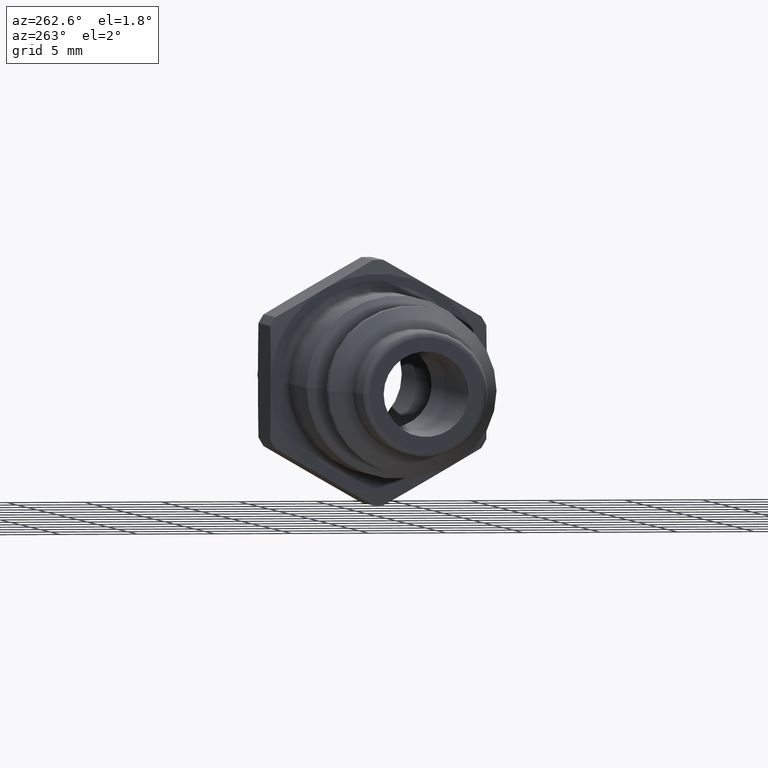
[diagram: clean part render]
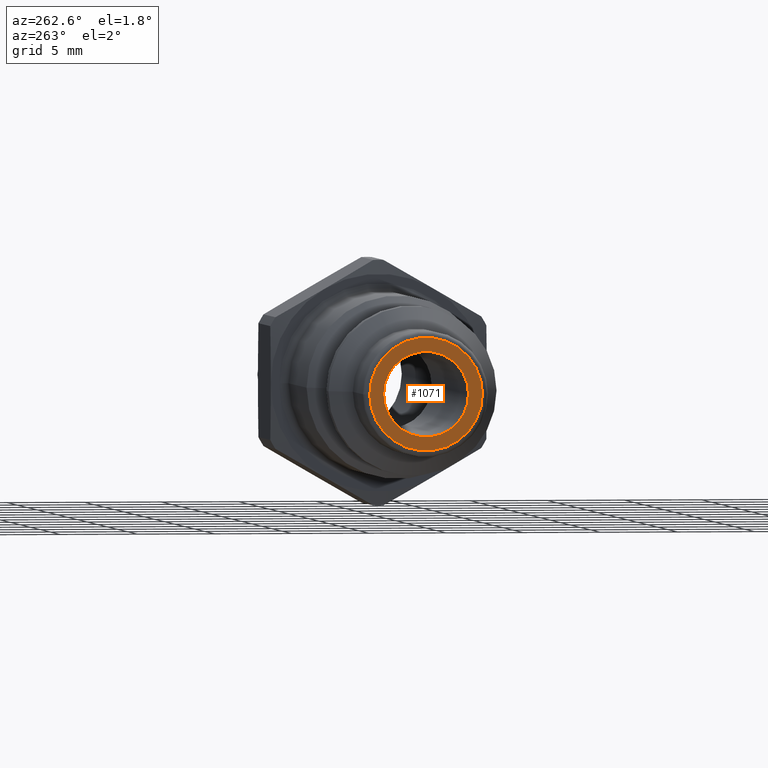
[diagram: same view with one face highlighted and labeled with its STEP entity id]
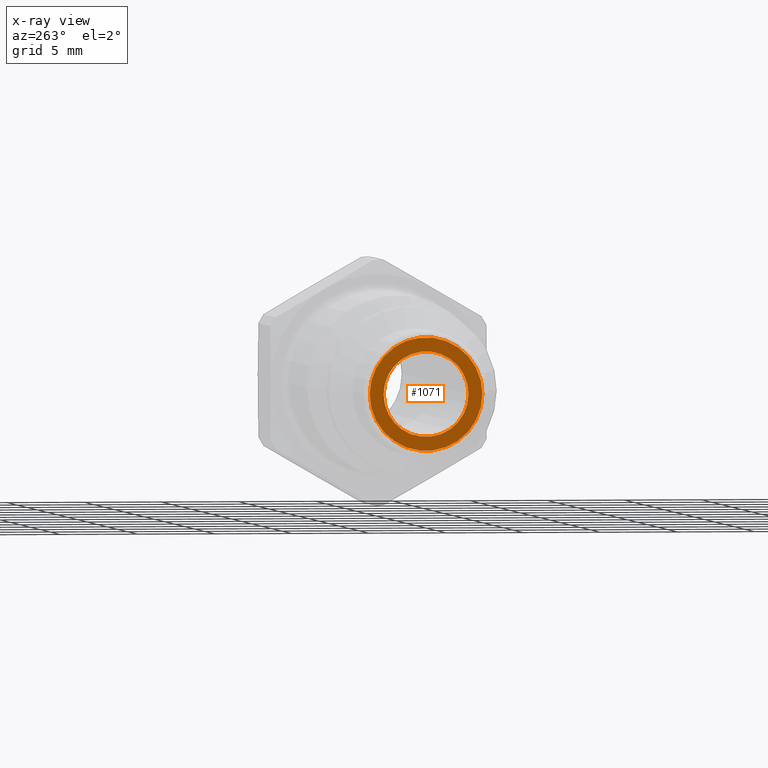
[diagram: x-ray of the same camera — body ghosted, the highlighted face saturated]
A machine part, auxiliary view. The second image highlights one B-rep face of the part: STEP entity #1071.
The next image is the same camera in x-ray: the body ghosted, the highlighted face saturated — about 0% of this face is hidden behind the body in this view.
In plain terms, the highlighted planar face has unit normal (-1, 0, 0).
Its self-contained STEP definition (entity closure, byte-faithful):
#1009=CARTESIAN_POINT('',(-3.469447E-016,3.650000000000001,0.0));
#1010=VERTEX_POINT('',#1009);
#1011=CARTESIAN_POINT('',(-3.469447E-016,0.0,0.0));
#1012=DIRECTION('',(1.0,0.0,0.0));
#1013=DIRECTION('',(0.0,-1.0,0.0));
#1014=AXIS2_PLACEMENT_3D('',#1011,#1012,#1013);
#1015=CIRCLE('',#1014,3.650000000000001);
#1016=EDGE_CURVE('',#1010,#1010,#1015,.T.);
#1052=CARTESIAN_POINT('',(-3.719865E-016,3.399999999999995,0.0));
#1053=DIRECTION('',(-1.0,0.0,0.0));
#1054=DIRECTION('',(0.0,0.0,1.0));
#1055=AXIS2_PLACEMENT_3D('',#1052,#1053,#1054);
#1056=PLANE('',#1055);
#1057=ORIENTED_EDGE('',*,*,#1016,.F.);
#1058=EDGE_LOOP('',(#1057));
#1059=FACE_OUTER_BOUND('',#1058,.T.);
#1060=CARTESIAN_POINT('',(0.0,2.749999999999991,0.0));
#1061=VERTEX_POINT('',#1060);
#1062=CARTESIAN_POINT('',(0.0,0.0,0.0));
#1063=DIRECTION('',(1.0,0.0,0.0));
#1064=DIRECTION('',(0.0,1.0,0.0));
#1065=AXIS2_PLACEMENT_3D('',#1062,#1063,#1064);
#1066=CIRCLE('',#1065,2.749999999999991);
#1067=EDGE_CURVE('',#1061,#1061,#1066,.T.);
#1068=ORIENTED_EDGE('',*,*,#1067,.T.);
#1069=EDGE_LOOP('',(#1068));
#1070=FACE_BOUND('',#1069,.T.);
#1071=ADVANCED_FACE('',(#1059,#1070),#1056,.T.);